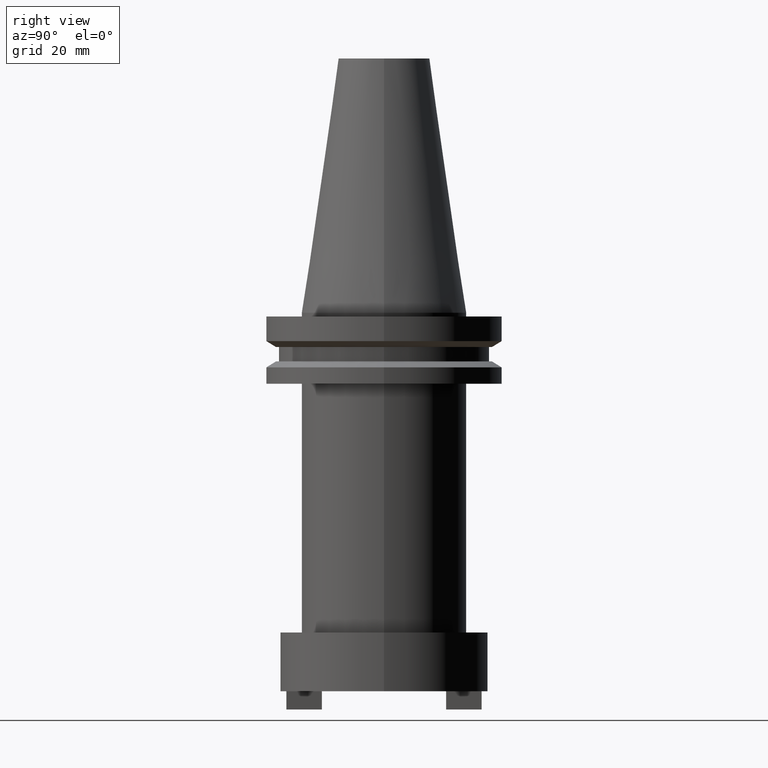
[diagram: clean part render]
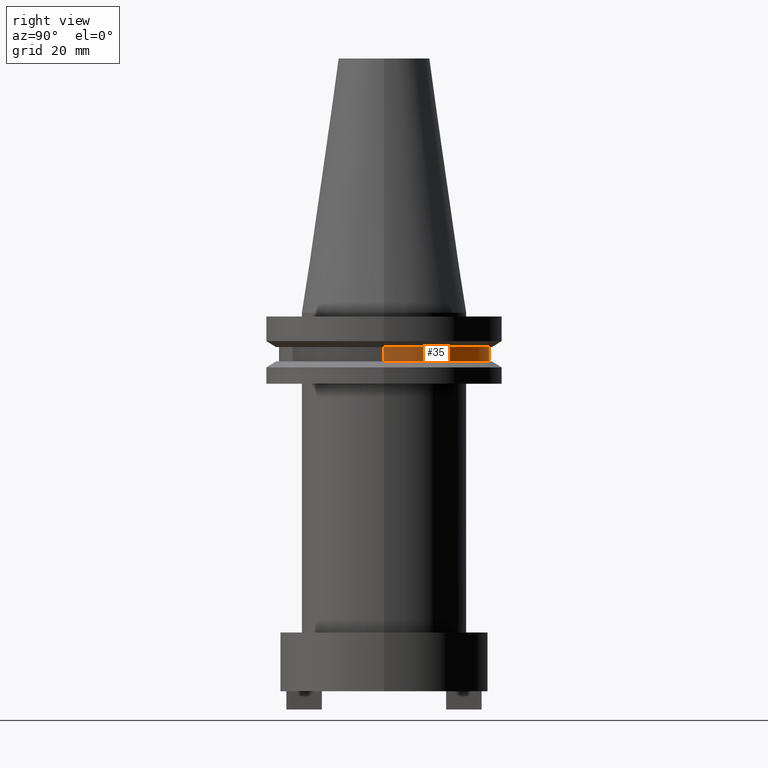
[diagram: same view with one face highlighted and labeled with its STEP entity id]
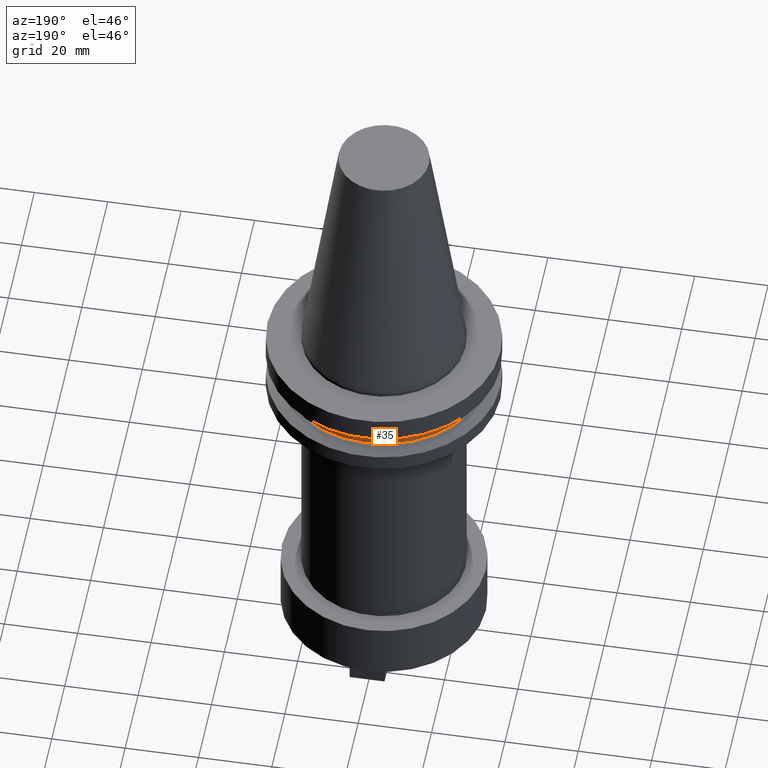
[diagram: same view with one face highlighted and labeled with its STEP entity id]
A machine part, right view. The second image highlights one B-rep face of the part: STEP entity #35.
A second angle (auxiliary view) of the same face is appended — the face is thin or edge-on in the first view.
In plain terms, the highlighted cylindrical surface (partial cylindrical patch) has radius 28.18 mm, axis along (-0, -0, 1).
Its self-contained STEP definition (entity closure, byte-faithful):
#16 = DIRECTION ( 'NONE',  ( -0.000000000000000000, -0.000000000000000000, 1.000000000000000000 ) ) ;
#35 = ADVANCED_FACE ( 'NONE', ( #128 ), #479, .T. ) ;
#41 = LINE ( 'NONE', #378, #189 ) ;
#43 = LINE ( 'NONE', #123, #681 ) ;
#54 = CARTESIAN_POINT ( 'NONE',  ( 28.17999999999999972, 0.000000000000000000, -9.204999999999991189 ) ) ;
#92 = CARTESIAN_POINT ( 'NONE',  ( 0.000000000000000000, 0.000000000000000000, -13.05499999999999794 ) ) ;
#123 = CARTESIAN_POINT ( 'NONE',  ( 28.17999999999999972, 0.000000000000000000, 68.25000000000000000 ) ) ;
#128 = FACE_OUTER_BOUND ( 'NONE', #195, .T. ) ;
#181 = DIRECTION ( 'NONE',  ( 1.000000000000000000, 0.000000000000000000, 0.000000000000000000 ) ) ;
#188 = DIRECTION ( 'NONE',  ( -0.000000000000000000, -0.000000000000000000, 1.000000000000000000 ) ) ;
#189 = VECTOR ( 'NONE', #1064, 1000.000000000000000 ) ;
#195 = EDGE_LOOP ( 'NONE', ( #984, #765, #513, #844 ) ) ;
#239 = VERTEX_POINT ( 'NONE', #696 ) ;
#270 = VERTEX_POINT ( 'NONE', #617 ) ;
#275 = EDGE_CURVE ( 'NONE', #239, #270, #698, .T. ) ;
#300 = DIRECTION ( 'NONE',  ( -0.000000000000000000, -0.000000000000000000, 1.000000000000000000 ) ) ;
#378 = CARTESIAN_POINT ( 'NONE',  ( -28.17999999999999972, 3.451054679997241634E-15, 68.25000000000000000 ) ) ;
#390 = VERTEX_POINT ( 'NONE', #54 ) ;
#479 = CYLINDRICAL_SURFACE ( 'NONE', #767, 28.17999999999999972 ) ;
#513 = ORIENTED_EDGE ( 'NONE', *, *, #635, .F. ) ;
#617 = CARTESIAN_POINT ( 'NONE',  ( -28.17999999999999972, 3.451054679997241634E-15, -13.05499999999999794 ) ) ;
#635 = EDGE_CURVE ( 'NONE', #390, #707, #893, .T. ) ;
#664 = DIRECTION ( 'NONE',  ( -0.000000000000000000, -0.000000000000000000, 1.000000000000000000 ) ) ;
#681 = VECTOR ( 'NONE', #300, 1000.000000000000000 ) ;
#694 = CARTESIAN_POINT ( 'NONE',  ( -28.17999999999999972, 3.451054679997241634E-15, -9.204999999999991189 ) ) ;
#696 = CARTESIAN_POINT ( 'NONE',  ( 28.17999999999999972, 0.000000000000000000, -13.05499999999999794 ) ) ;
#698 = CIRCLE ( 'NONE', #957, 28.17999999999999972 ) ;
#707 = VERTEX_POINT ( 'NONE', #694 ) ;
#765 = ORIENTED_EDGE ( 'NONE', *, *, #1088, .T. ) ;
#767 = AXIS2_PLACEMENT_3D ( 'NONE', #815, #664, #991 ) ;
#792 = EDGE_CURVE ( 'NONE', #239, #390, #43, .T. ) ;
#815 = CARTESIAN_POINT ( 'NONE',  ( 0.000000000000000000, 0.000000000000000000, 68.25000000000000000 ) ) ;
#844 = ORIENTED_EDGE ( 'NONE', *, *, #792, .F. ) ;
#846 = CARTESIAN_POINT ( 'NONE',  ( 0.000000000000000000, 0.000000000000000000, -9.204999999999991189 ) ) ;
#893 = CIRCLE ( 'NONE', #1065, 28.17999999999999972 ) ;
#935 = DIRECTION ( 'NONE',  ( 1.000000000000000000, 0.000000000000000000, 0.000000000000000000 ) ) ;
#957 = AXIS2_PLACEMENT_3D ( 'NONE', #92, #188, #181 ) ;
#984 = ORIENTED_EDGE ( 'NONE', *, *, #275, .T. ) ;
#991 = DIRECTION ( 'NONE',  ( 1.000000000000000000, 0.000000000000000000, 0.000000000000000000 ) ) ;
#1064 = DIRECTION ( 'NONE',  ( -0.000000000000000000, -0.000000000000000000, 1.000000000000000000 ) ) ;
#1065 = AXIS2_PLACEMENT_3D ( 'NONE', #846, #16, #935 ) ;
#1088 = EDGE_CURVE ( 'NONE', #270, #707, #41, .T. ) ;